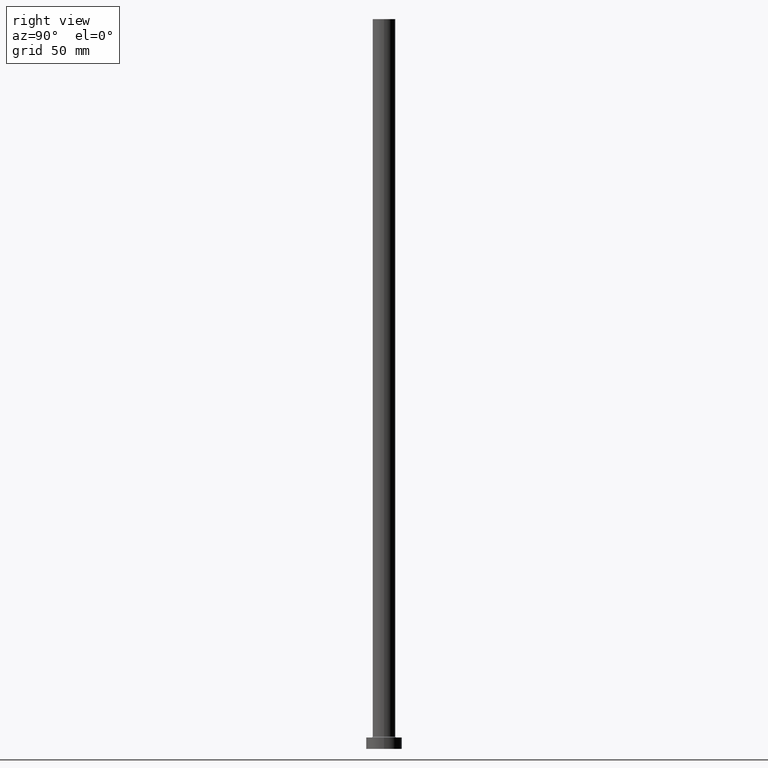
[diagram: clean part render]
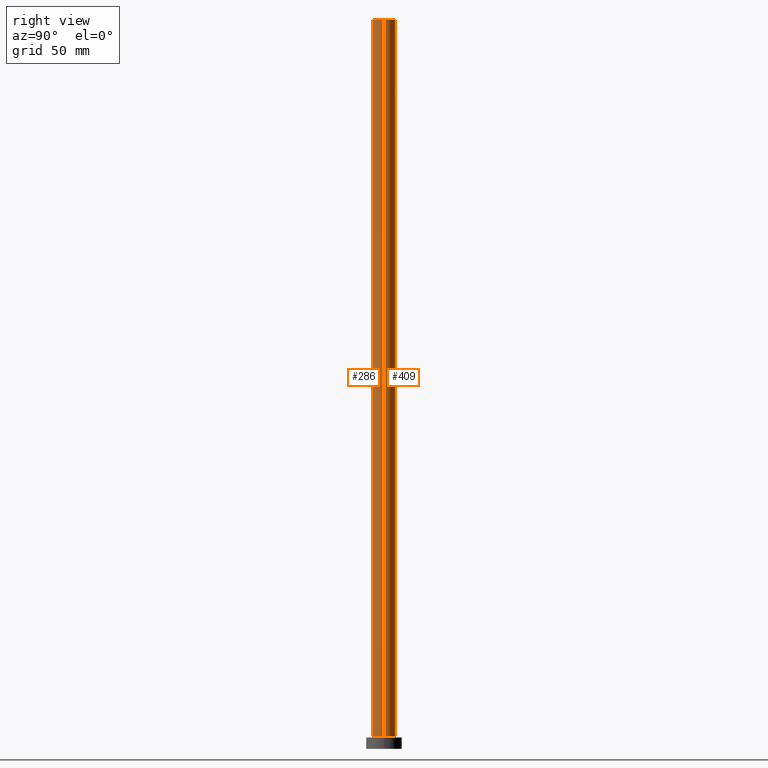
[diagram: same view with one multi-face feature highlighted, each face labeled with its STEP entity id]
A machine part, right view. The highlighted faces form ONE feature: a constant-radius fillet chain: 2 tangent blend faces with common blend radius 7 mm. The faces share edges in the B-rep.
Their STEP definitions:
[1] entity #286 (Cylinder):
#19 = EDGE_CURVE ( 'NONE', #407, #134, #321, .T. ) ;
#44 = EDGE_CURVE ( 'NONE', #184, #407, #306, .T. ) ;
#66 = CARTESIAN_POINT ( 'NONE',  ( 0.000000000000000000, 0.000000000000000000, 7.699999999999985079 ) ) ;
#67 = AXIS2_PLACEMENT_3D ( 'NONE', #204, #378, #337 ) ;
#126 = EDGE_LOOP ( 'NONE', ( #360, #380, #225, #443 ) ) ;
#131 = VECTOR ( 'NONE', #382, 1000.000000000000000 ) ;
#132 = CYLINDRICAL_SURFACE ( 'NONE', #67, 7.000000000000000888 ) ;
#134 = VERTEX_POINT ( 'NONE', #154 ) ;
#143 = DIRECTION ( 'NONE',  ( 1.000000000000000000, 0.000000000000000000, 0.000000000000000000 ) ) ;
#154 = CARTESIAN_POINT ( 'NONE',  ( 7.000000000000000888, 8.572527594031474176E-16, 7.699999999999985079 ) ) ;
#164 = AXIS2_PLACEMENT_3D ( 'NONE', #66, #310, #143 ) ;
#182 = CARTESIAN_POINT ( 'NONE',  ( 7.000000000000000888, 8.572527594031474176E-16, 450.0000000000000000 ) ) ;
#184 = VERTEX_POINT ( 'NONE', #429 ) ;
#187 = CARTESIAN_POINT ( 'NONE',  ( 7.000000000000000888, 8.572527594031474176E-16, 450.0000000000000000 ) ) ;
#204 = CARTESIAN_POINT ( 'NONE',  ( 0.000000000000000000, 0.000000000000000000, 450.0000000000000000 ) ) ;
#205 = CARTESIAN_POINT ( 'NONE',  ( -7.000000000000000888, 0.000000000000000000, 450.0000000000000000 ) ) ;
#215 = LINE ( 'NONE', #182, #327 ) ;
#217 = EDGE_CURVE ( 'NONE', #184, #413, #241, .T. ) ;
#225 = ORIENTED_EDGE ( 'NONE', *, *, #44, .T. ) ;
#241 = CIRCLE ( 'NONE', #440, 7.000000000000000888 ) ;
#248 = CARTESIAN_POINT ( 'NONE',  ( 0.000000000000000000, 0.000000000000000000, 450.0000000000000000 ) ) ;
#249 = CARTESIAN_POINT ( 'NONE',  ( -7.000000000000000888, 0.000000000000000000, 7.699999999999985079 ) ) ;
#280 = DIRECTION ( 'NONE',  ( -0.000000000000000000, -0.000000000000000000, -1.000000000000000000 ) ) ;
#286 = ADVANCED_FACE ( 'NONE', ( #446 ), #132, .T. ) ;
#306 = LINE ( 'NONE', #205, #131 ) ;
#310 = DIRECTION ( 'NONE',  ( 0.000000000000000000, 0.000000000000000000, 1.000000000000000000 ) ) ;
#321 = CIRCLE ( 'NONE', #164, 7.000000000000000888 ) ;
#327 = VECTOR ( 'NONE', #280, 1000.000000000000000 ) ;
#337 = DIRECTION ( 'NONE',  ( -1.000000000000000000, 0.000000000000000000, 0.000000000000000000 ) ) ;
#349 = EDGE_CURVE ( 'NONE', #413, #134, #215, .T. ) ;
#350 = DIRECTION ( 'NONE',  ( 1.000000000000000000, 0.000000000000000000, 0.000000000000000000 ) ) ;
#360 = ORIENTED_EDGE ( 'NONE', *, *, #349, .F. ) ;
#378 = DIRECTION ( 'NONE',  ( -0.000000000000000000, -0.000000000000000000, -1.000000000000000000 ) ) ;
#380 = ORIENTED_EDGE ( 'NONE', *, *, #217, .F. ) ;
#382 = DIRECTION ( 'NONE',  ( -0.000000000000000000, -0.000000000000000000, -1.000000000000000000 ) ) ;
#388 = DIRECTION ( 'NONE',  ( 0.000000000000000000, 0.000000000000000000, 1.000000000000000000 ) ) ;
#407 = VERTEX_POINT ( 'NONE', #249 ) ;
#413 = VERTEX_POINT ( 'NONE', #187 ) ;
#429 = CARTESIAN_POINT ( 'NONE',  ( -7.000000000000000888, 0.000000000000000000, 450.0000000000000000 ) ) ;
#440 = AXIS2_PLACEMENT_3D ( 'NONE', #248, #388, #350 ) ;
#443 = ORIENTED_EDGE ( 'NONE', *, *, #19, .T. ) ;
#446 = FACE_OUTER_BOUND ( 'NONE', #126, .T. ) ;
[2] entity #409 (Cylinder):
#23 = EDGE_CURVE ( 'NONE', #134, #407, #447, .T. ) ;
#29 = EDGE_LOOP ( 'NONE', ( #411, #150, #454, #230 ) ) ;
#34 = DIRECTION ( 'NONE',  ( 0.000000000000000000, 0.000000000000000000, 1.000000000000000000 ) ) ;
#43 = AXIS2_PLACEMENT_3D ( 'NONE', #76, #221, #213 ) ;
#44 = EDGE_CURVE ( 'NONE', #184, #407, #306, .T. ) ;
#76 = CARTESIAN_POINT ( 'NONE',  ( 0.000000000000000000, 0.000000000000000000, 450.0000000000000000 ) ) ;
#85 = DIRECTION ( 'NONE',  ( 0.000000000000000000, 0.000000000000000000, 1.000000000000000000 ) ) ;
#131 = VECTOR ( 'NONE', #382, 1000.000000000000000 ) ;
#134 = VERTEX_POINT ( 'NONE', #154 ) ;
#147 = CYLINDRICAL_SURFACE ( 'NONE', #43, 7.000000000000000888 ) ;
#150 = ORIENTED_EDGE ( 'NONE', *, *, #349, .T. ) ;
#154 = CARTESIAN_POINT ( 'NONE',  ( 7.000000000000000888, 8.572527594031474176E-16, 7.699999999999985079 ) ) ;
#182 = CARTESIAN_POINT ( 'NONE',  ( 7.000000000000000888, 8.572527594031474176E-16, 450.0000000000000000 ) ) ;
#184 = VERTEX_POINT ( 'NONE', #429 ) ;
#187 = CARTESIAN_POINT ( 'NONE',  ( 7.000000000000000888, 8.572527594031474176E-16, 450.0000000000000000 ) ) ;
#205 = CARTESIAN_POINT ( 'NONE',  ( -7.000000000000000888, 0.000000000000000000, 450.0000000000000000 ) ) ;
#210 = AXIS2_PLACEMENT_3D ( 'NONE', #245, #34, #375 ) ;
#211 = AXIS2_PLACEMENT_3D ( 'NONE', #224, #85, #445 ) ;
#213 = DIRECTION ( 'NONE',  ( -1.000000000000000000, 0.000000000000000000, 0.000000000000000000 ) ) ;
#215 = LINE ( 'NONE', #182, #327 ) ;
#221 = DIRECTION ( 'NONE',  ( -0.000000000000000000, -0.000000000000000000, -1.000000000000000000 ) ) ;
#224 = CARTESIAN_POINT ( 'NONE',  ( 0.000000000000000000, 0.000000000000000000, 450.0000000000000000 ) ) ;
#230 = ORIENTED_EDGE ( 'NONE', *, *, #44, .F. ) ;
#245 = CARTESIAN_POINT ( 'NONE',  ( 0.000000000000000000, 0.000000000000000000, 7.699999999999985079 ) ) ;
#249 = CARTESIAN_POINT ( 'NONE',  ( -7.000000000000000888, 0.000000000000000000, 7.699999999999985079 ) ) ;
#280 = DIRECTION ( 'NONE',  ( -0.000000000000000000, -0.000000000000000000, -1.000000000000000000 ) ) ;
#306 = LINE ( 'NONE', #205, #131 ) ;
#309 = CIRCLE ( 'NONE', #211, 7.000000000000000888 ) ;
#327 = VECTOR ( 'NONE', #280, 1000.000000000000000 ) ;
#349 = EDGE_CURVE ( 'NONE', #413, #134, #215, .T. ) ;
#375 = DIRECTION ( 'NONE',  ( 1.000000000000000000, 0.000000000000000000, 0.000000000000000000 ) ) ;
#382 = DIRECTION ( 'NONE',  ( -0.000000000000000000, -0.000000000000000000, -1.000000000000000000 ) ) ;
#394 = FACE_OUTER_BOUND ( 'NONE', #29, .T. ) ;
#407 = VERTEX_POINT ( 'NONE', #249 ) ;
#409 = ADVANCED_FACE ( 'NONE', ( #394 ), #147, .T. ) ;
#411 = ORIENTED_EDGE ( 'NONE', *, *, #450, .F. ) ;
#413 = VERTEX_POINT ( 'NONE', #187 ) ;
#429 = CARTESIAN_POINT ( 'NONE',  ( -7.000000000000000888, 0.000000000000000000, 450.0000000000000000 ) ) ;
#445 = DIRECTION ( 'NONE',  ( 1.000000000000000000, 0.000000000000000000, 0.000000000000000000 ) ) ;
#447 = CIRCLE ( 'NONE', #210, 7.000000000000000888 ) ;
#450 = EDGE_CURVE ( 'NONE', #413, #184, #309, .T. ) ;
#454 = ORIENTED_EDGE ( 'NONE', *, *, #23, .T. ) ;